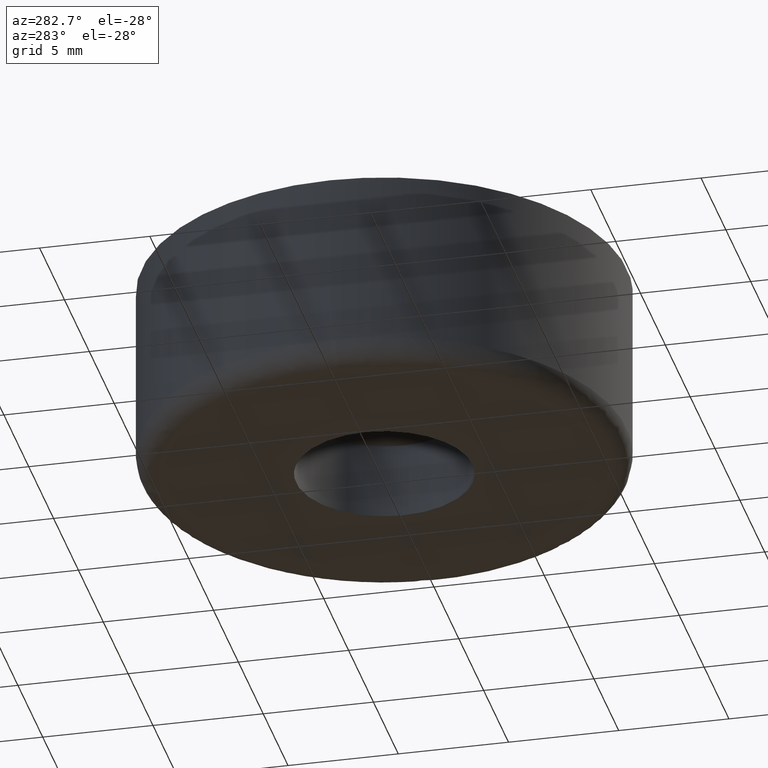
[diagram: clean part render]
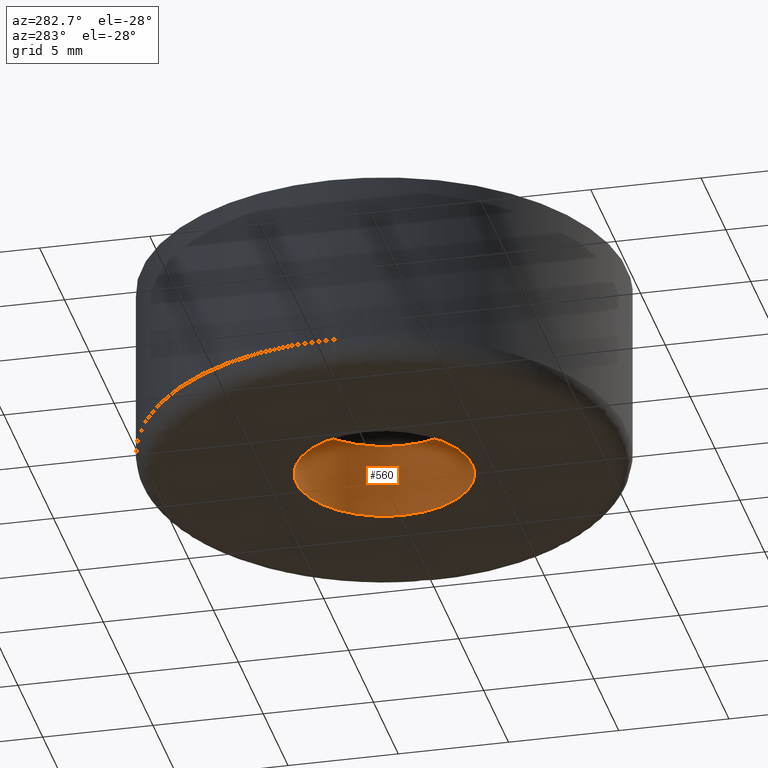
[diagram: same view with one face highlighted and labeled with its STEP entity id]
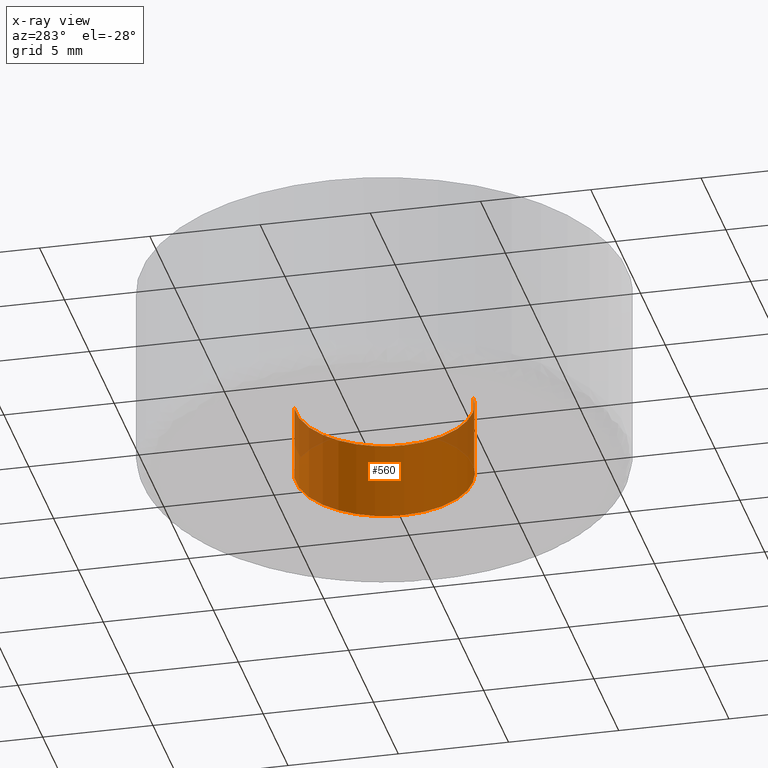
[diagram: x-ray of the same camera — body ghosted, the highlighted face saturated]
A machine part, auxiliary view. The second image highlights one B-rep face of the part: STEP entity #560.
The next image is the same camera in x-ray: the body ghosted, the highlighted face saturated — about 12% of this face is hidden behind the body in this view.
In plain terms, the highlighted face is a freeform B-spline surface patch.
Its self-contained STEP definition (entity closure, byte-faithful):
#454=CARTESIAN_POINT('',(-0.531081981653830,3.965031593577629,3.587500000000001));
#455=CARTESIAN_POINT('',(-0.501526358987366,3.968544727347870,3.587500000000000));
#456=CARTESIAN_POINT('',(-0.358458914551911,3.985550461794422,3.587500000000000));
#457=CARTESIAN_POINT('',(-0.244194158139428,3.992539193687467,3.587500000000000));
#458=CARTESIAN_POINT('',(3.748345035548039,4.236733351826894,3.587500000000001));
#459=CARTESIAN_POINT('',(3.992539193687467,0.244194158139428,3.587500000000000));
#460=CARTESIAN_POINT('',(4.236733351826894,-3.748345035548039,3.587500000000001));
#461=CARTESIAN_POINT('',(0.215480847990749,-3.994295374969354,3.587500000000000));
#462=CARTESIAN_POINT('',(0.186938098884701,-3.996041124290977,3.587499999999999));
#463=CARTESIAN_POINT('',(-0.531081981653830,3.965031593577629,-0.089687500000000));
#464=CARTESIAN_POINT('',(-0.501526358987366,3.968544727347870,-0.089687500000000));
#465=CARTESIAN_POINT('',(-0.358458914551911,3.985550461794422,-0.089687500000000));
#466=CARTESIAN_POINT('',(-0.244194158139428,3.992539193687467,-0.089687500000000));
#467=CARTESIAN_POINT('',(3.748345035548039,4.236733351826894,-0.089687500000000));
#468=CARTESIAN_POINT('',(3.992539193687467,0.244194158139428,-0.089687500000000));
#469=CARTESIAN_POINT('',(4.236733351826894,-3.748345035548039,-0.089687500000000));
#470=CARTESIAN_POINT('',(0.215480847990749,-3.994295374969354,-0.089687500000000));
#471=CARTESIAN_POINT('',(0.186938098884701,-3.996041124290977,-0.089687500000000));
#479=(BOUNDED_SURFACE()B_SPLINE_SURFACE(2,1,((#454,#463),(#455,#464),(#456,#465),(#457,#466),(#458,#467),(#459,#468),(#460,#469),(#461,#470),(#462,#471)),.UNSPECIFIED.,.F.,.F.,.U.)B_SPLINE_SURFACE_WITH_KNOTS((3,1,2,2,1,3),(2,2),(0.0,0.067597935587385,0.332694615506166,6.960111613475685,13.587528611445210,13.655135200790710),(0.0,3.677187500000001),.UNSPECIFIED.)GEOMETRIC_REPRESENTATION_ITEM()RATIONAL_B_SPLINE_SURFACE(((0.972008920550601,0.972008920550601),(0.974757360672864,0.974757360672864),(0.988284271247462,0.988284271247462),(1.0,1.0),(0.707106781186548,0.707106781186548),(1.0,1.0),(0.707106781186548,0.707106781186548),(1.002987817361194,1.002987817361194),(1.005975634722388,1.005975634722388)))REPRESENTATION_ITEM('')SURFACE());
#480=CARTESIAN_POINT('',(-0.472135409144780,3.972038287256218,-7.780033E-015));
#481=VERTEX_POINT('',#480);
#482=CARTESIAN_POINT('',(4.0,0.0,0.0));
#483=VERTEX_POINT('',#482);
#484=CARTESIAN_POINT('',(-0.472135409144780,3.972038287256219,-7.780033E-015));
#485=CARTESIAN_POINT('',(-0.236895705781812,4.000000000000000,0.0));
#486=CARTESIAN_POINT('',(0.0,4.0,0.0));
#487=CARTESIAN_POINT('',(4.000000000000000,4.000000000000000,0.0));
#488=CARTESIAN_POINT('',(4.0,0.0,0.0));
#496=(BOUNDED_CURVE()B_SPLINE_CURVE(2,(#484,#485,#486,#487,#488),.UNSPECIFIED.,.F.,.U.)B_SPLINE_CURVE_WITH_KNOTS((3,2,3),(0.229562538592431,0.250000000000000,0.500000000000000),.UNSPECIFIED.)CURVE()GEOMETRIC_REPRESENTATION_ITEM()RATIONAL_B_SPLINE_CURVE((0.956026881741091,0.976056024575846,1.0,0.707106781186548,1.0))REPRESENTATION_ITEM(''));
#497=EDGE_CURVE('',#481,#483,#496,.T.);
#498=ORIENTED_EDGE('',*,*,#497,.T.);
#499=CARTESIAN_POINT('',(0.244188269697965,-3.992539553831259,-5.921652E-014));
#500=VERTEX_POINT('',#499);
#501=CARTESIAN_POINT('',(4.0,0.0,0.0));
#502=CARTESIAN_POINT('',(4.0,-3.762829827640497,0.0));
#503=CARTESIAN_POINT('',(0.244188269697965,-3.992539553831259,-5.921652E-014));
#511=(BOUNDED_CURVE()B_SPLINE_CURVE(2,(#501,#502,#503),.UNSPECIFIED.,.F.,.U.)B_SPLINE_CURVE_WITH_KNOTS((3,3),(0.500000000000000,0.739333216724596),.UNSPECIFIED.)CURVE()GEOMETRIC_REPRESENTATION_ITEM()RATIONAL_B_SPLINE_CURVE((1.0,0.719603695138222,0.976072587078522))REPRESENTATION_ITEM(''));
#512=EDGE_CURVE('',#483,#500,#511,.T.);
#513=ORIENTED_EDGE('',*,*,#512,.T.);
#514=CARTESIAN_POINT('',(0.244188342415201,-3.992539549383896,3.500000000000000));
#515=VERTEX_POINT('',#514);
#516=CARTESIAN_POINT('',(0.244188342415201,-3.992539549383896,3.500000000000000));
#517=CARTESIAN_POINT('',(0.244188269697965,-3.992539553831259,-5.921652E-014));
#518=QUASI_UNIFORM_CURVE('',1,(#516,#517),.UNSPECIFIED.,.F.,.U.);
#519=EDGE_CURVE('',#515,#500,#518,.T.);
#520=ORIENTED_EDGE('',*,*,#519,.F.);
#521=CARTESIAN_POINT('',(4.0,0.0,3.500000000000000));
#522=VERTEX_POINT('',#521);
#523=CARTESIAN_POINT('',(4.0,0.0,3.500000000000000));
#524=CARTESIAN_POINT('',(4.000000000000001,-3.762829758978972,3.500000000000000));
#525=CARTESIAN_POINT('',(0.244188342415201,-3.992539549383895,3.500000000000000));
#533=(BOUNDED_CURVE()B_SPLINE_CURVE(2,(#523,#524,#525),.UNSPECIFIED.,.F.,.U.)B_SPLINE_CURVE_WITH_KNOTS((3,3),(0.500000000000000,0.739333213581951),.UNSPECIFIED.)CURVE()GEOMETRIC_REPRESENTATION_ITEM()RATIONAL_B_SPLINE_CURVE((1.0,0.719603698820059,0.976072580343222))REPRESENTATION_ITEM(''));
#534=EDGE_CURVE('',#522,#515,#533,.T.);
#535=ORIENTED_EDGE('',*,*,#534,.F.);
#536=CARTESIAN_POINT('',(-0.472135428042880,3.972038285009908,3.500000000000000));
#537=VERTEX_POINT('',#536);
#538=CARTESIAN_POINT('',(-0.472135428042880,3.972038285009907,3.500000000000000));
#539=CARTESIAN_POINT('',(-0.236895715330755,4.0,3.500000000000000));
#540=CARTESIAN_POINT('',(0.0,4.0,3.500000000000000));
#541=CARTESIAN_POINT('',(4.000000000000000,4.000000000000000,3.499999999999999));
#542=CARTESIAN_POINT('',(4.0,0.0,3.500000000000000));
#550=(BOUNDED_CURVE()B_SPLINE_CURVE(2,(#538,#539,#540,#541,#542),.UNSPECIFIED.,.F.,.U.)B_SPLINE_CURVE_WITH_KNOTS((3,2,3),(0.229562537788350,0.250000000000000,0.500000000000000),.UNSPECIFIED.)CURVE()GEOMETRIC_REPRESENTATION_ITEM()RATIONAL_B_SPLINE_CURVE((0.956026880165058,0.976056023633806,1.0,0.707106781186548,1.0))REPRESENTATION_ITEM(''));
#551=EDGE_CURVE('',#537,#522,#550,.T.);
#552=ORIENTED_EDGE('',*,*,#551,.F.);
#553=CARTESIAN_POINT('',(-0.472135428042880,3.972038285009908,3.500000000000000));
#554=CARTESIAN_POINT('',(-0.472135409144780,3.972038287256218,-7.780033E-015));
#555=QUASI_UNIFORM_CURVE('',1,(#553,#554),.UNSPECIFIED.,.F.,.U.);
#556=EDGE_CURVE('',#537,#481,#555,.T.);
#557=ORIENTED_EDGE('',*,*,#556,.T.);
#558=EDGE_LOOP('',(#498,#513,#520,#535,#552,#557));
#559=FACE_OUTER_BOUND('',#558,.T.);
#560=ADVANCED_FACE('',(#559),#479,.F.);